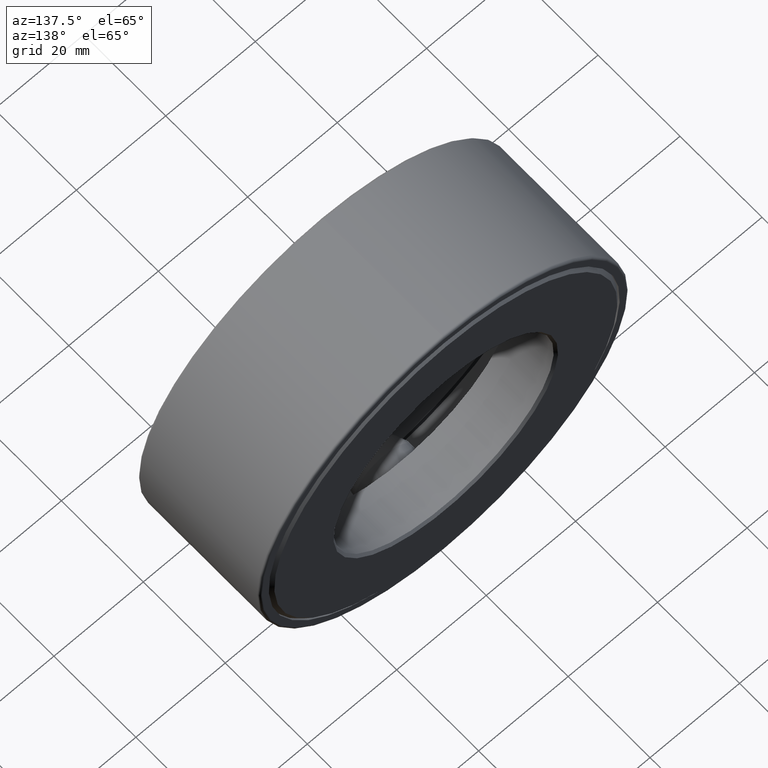
[diagram: clean part render]
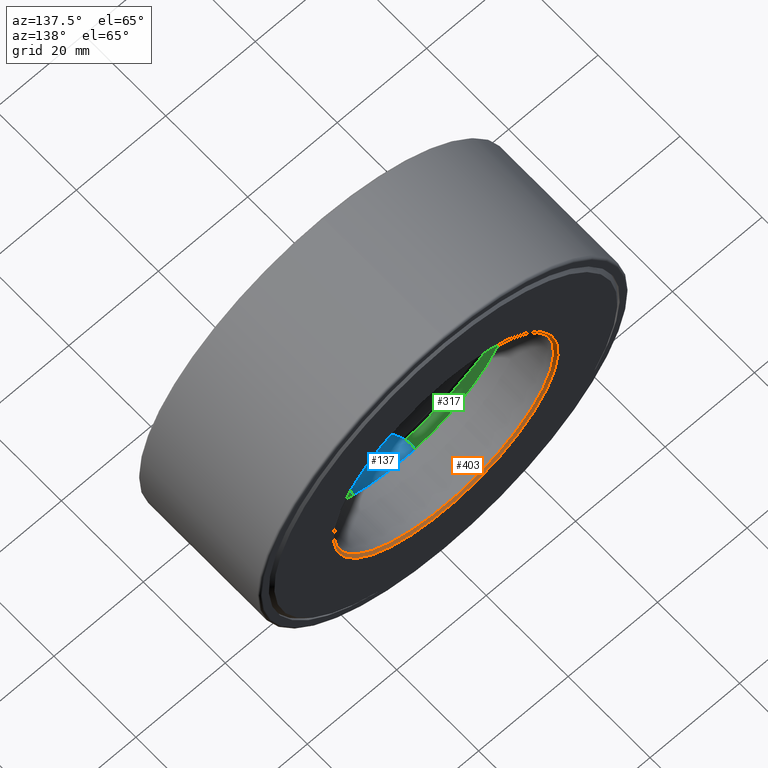
[diagram: same view with three faces highlighted in distinct colors, each labeled with its STEP entity id]
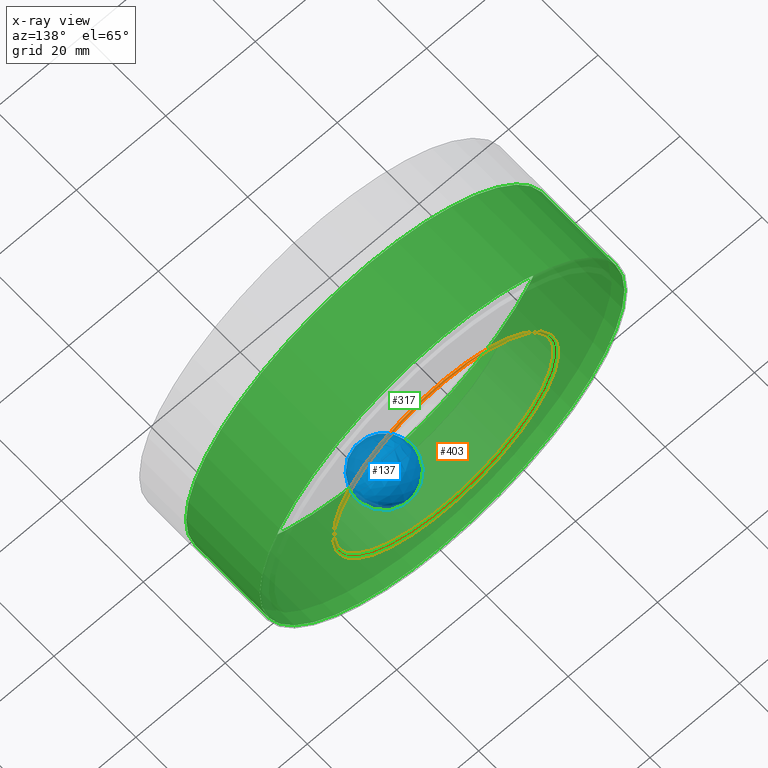
[diagram: x-ray of the same camera — body ghosted, the three highlighted faces saturated]
A machine part, auxiliary view with three faces highlighted in distinct colors.
The next image is the same camera in x-ray (body ghosted, the three faces saturated) — at least one of them is partly hidden behind the body in this view.
Their STEP definitions:

[orange] entity #403 — the highlighted conical surface has half-angle 45 deg.
#11 = FACE_OUTER_BOUND ( 'NONE', #568, .T. ) ;
#75 = EDGE_LOOP ( 'NONE', ( #234 ) ) ;
#95 = DIRECTION ( 'NONE',  ( 0.0000000000000000000, 0.0000000000000000000, 1.000000000000000000 ) ) ;
#145 = EDGE_CURVE ( 'NONE', #242, #242, #529, .T. ) ;
#146 = DIRECTION ( 'NONE',  ( -0.0000000000000000000, 1.000000000000000000, -0.0000000000000000000 ) ) ;
#165 = CONICAL_SURFACE ( 'NONE', #570, 0.9687500000000001100, 0.7853981633974415100 ) ;
#200 = CIRCLE ( 'NONE', #359, 0.9687500000000001100 ) ;
#234 = ORIENTED_EDGE ( 'NONE', *, *, #532, .F. ) ;
#242 = VERTEX_POINT ( 'NONE', #518 ) ;
#251 = DIRECTION ( 'NONE',  ( -0.0000000000000000000, 1.000000000000000000, -0.0000000000000000000 ) ) ;
#320 = CARTESIAN_POINT ( 'NONE',  ( 0.0000000000000000000, 1.167499999999999500, 0.9687500000000001100 ) ) ;
#359 = AXIS2_PLACEMENT_3D ( 'NONE', #362, #146, #573 ) ;
#362 = CARTESIAN_POINT ( 'NONE',  ( 0.0000000000000000000, 1.167499999999999500, 0.0000000000000000000 ) ) ;
#391 = CARTESIAN_POINT ( 'NONE',  ( 0.0000000000000000000, 1.167499999999999500, 0.0000000000000000000 ) ) ;
#398 = AXIS2_PLACEMENT_3D ( 'NONE', #456, #598, #559 ) ;
#403 = ADVANCED_FACE ( 'NONE', ( #11, #497 ), #165, .F. ) ;
#456 = CARTESIAN_POINT ( 'NONE',  ( 0.0000000000000000000, 1.187500000000000000, 0.0000000000000000000 ) ) ;
#497 = FACE_BOUND ( 'NONE', #75, .T. ) ;
#518 = CARTESIAN_POINT ( 'NONE',  ( 0.0000000000000000000, 1.187500000000000000, 0.9887500000000003500 ) ) ;
#529 = CIRCLE ( 'NONE', #398, 0.9887500000000003500 ) ;
#532 = EDGE_CURVE ( 'NONE', #572, #572, #200, .T. ) ;
#559 = DIRECTION ( 'NONE',  ( 0.0000000000000000000, 0.0000000000000000000, 1.000000000000000000 ) ) ;
#568 = EDGE_LOOP ( 'NONE', ( #593 ) ) ;
#570 = AXIS2_PLACEMENT_3D ( 'NONE', #391, #251, #95 ) ;
#572 = VERTEX_POINT ( 'NONE', #320 ) ;
#573 = DIRECTION ( 'NONE',  ( 0.0000000000000000000, 0.0000000000000000000, 1.000000000000000000 ) ) ;
#593 = ORIENTED_EDGE ( 'NONE', *, *, #145, .T. ) ;
#598 = DIRECTION ( 'NONE',  ( -0.0000000000000000000, 1.000000000000000000, -0.0000000000000000000 ) ) ;

[blue] entity #137 — the highlighted spherical surface has radius 6.35 mm.
#41 = SPHERICAL_SURFACE ( 'NONE', #405, 0.2500000000000000600 ) ;
#137 = ADVANCED_FACE ( 'NONE', ( ), #41, .T. ) ;
#308 = DIRECTION ( 'NONE',  ( 1.000000000000000000, 0.0000000000000000000, -1.047444401652940000E-014 ) ) ;
#355 = DIRECTION ( 'NONE',  ( 1.047444401652940000E-014, 0.0000000000000000000, 1.000000000000000000 ) ) ;
#361 = CARTESIAN_POINT ( 'NONE',  ( -1.409860164624857200E-014, 0.5937500000000000000, -1.346000000000000100 ) ) ;
#405 = AXIS2_PLACEMENT_3D ( 'NONE', #361, #308, #355 ) ;

[green] entity #317 — the highlighted cylindrical surface (bore or boss wall) has radius 40.767 mm, axis along (-0, 1, -0).
#14 = CARTESIAN_POINT ( 'NONE',  ( 0.0000000000000000000, 1.152499999999999900, 1.605000000000000000 ) ) ;
#65 = EDGE_LOOP ( 'NONE', ( #503 ) ) ;
#103 = VERTEX_POINT ( 'NONE', #468 ) ;
#109 = CARTESIAN_POINT ( 'NONE',  ( 0.0000000000000000000, 1.152499999999999900, 0.0000000000000000000 ) ) ;
#116 = ORIENTED_EDGE ( 'NONE', *, *, #289, .T. ) ;
#140 = CARTESIAN_POINT ( 'NONE',  ( 0.0000000000000000000, 0.4437499999999997600, 0.0000000000000000000 ) ) ;
#158 = FACE_OUTER_BOUND ( 'NONE', #440, .T. ) ;
#223 = CIRCLE ( 'NONE', #245, 1.605000000000000000 ) ;
#245 = AXIS2_PLACEMENT_3D ( 'NONE', #140, #278, #379 ) ;
#248 = CYLINDRICAL_SURFACE ( 'NONE', #380, 1.605000000000000000 ) ;
#278 = DIRECTION ( 'NONE',  ( -0.0000000000000000000, 1.000000000000000000, -0.0000000000000000000 ) ) ;
#289 = EDGE_CURVE ( 'NONE', #582, #582, #462, .T. ) ;
#294 = DIRECTION ( 'NONE',  ( -0.0000000000000000000, 1.000000000000000000, -0.0000000000000000000 ) ) ;
#317 = ADVANCED_FACE ( 'NONE', ( #539, #158 ), #248, .F. ) ;
#325 = EDGE_CURVE ( 'NONE', #103, #103, #223, .T. ) ;
#330 = DIRECTION ( 'NONE',  ( 0.0000000000000000000, 0.0000000000000000000, 1.000000000000000000 ) ) ;
#379 = DIRECTION ( 'NONE',  ( 0.0000000000000000000, 0.0000000000000000000, 1.000000000000000000 ) ) ;
#380 = AXIS2_PLACEMENT_3D ( 'NONE', #514, #472, #330 ) ;
#440 = EDGE_LOOP ( 'NONE', ( #116 ) ) ;
#441 = DIRECTION ( 'NONE',  ( 0.0000000000000000000, 0.0000000000000000000, 1.000000000000000000 ) ) ;
#462 = CIRCLE ( 'NONE', #536, 1.605000000000000000 ) ;
#468 = CARTESIAN_POINT ( 'NONE',  ( 0.0000000000000000000, 0.4437499999999997600, 1.605000000000000000 ) ) ;
#472 = DIRECTION ( 'NONE',  ( -0.0000000000000000000, 1.000000000000000000, -0.0000000000000000000 ) ) ;
#503 = ORIENTED_EDGE ( 'NONE', *, *, #325, .F. ) ;
#514 = CARTESIAN_POINT ( 'NONE',  ( 0.0000000000000000000, 0.0000000000000000000, 0.0000000000000000000 ) ) ;
#536 = AXIS2_PLACEMENT_3D ( 'NONE', #109, #294, #441 ) ;
#539 = FACE_OUTER_BOUND ( 'NONE', #65, .T. ) ;
#582 = VERTEX_POINT ( 'NONE', #14 ) ;